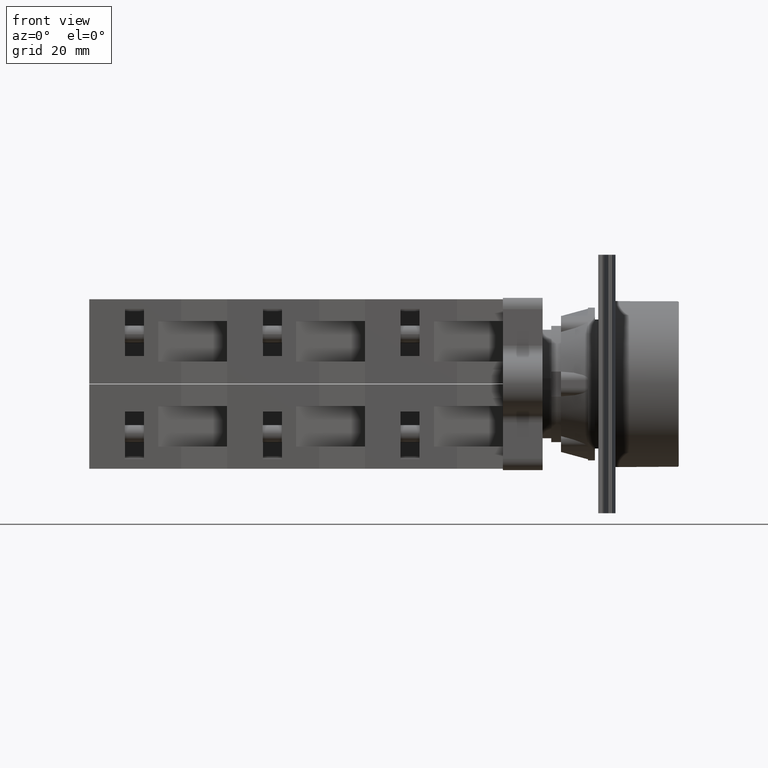
[diagram: clean part render]
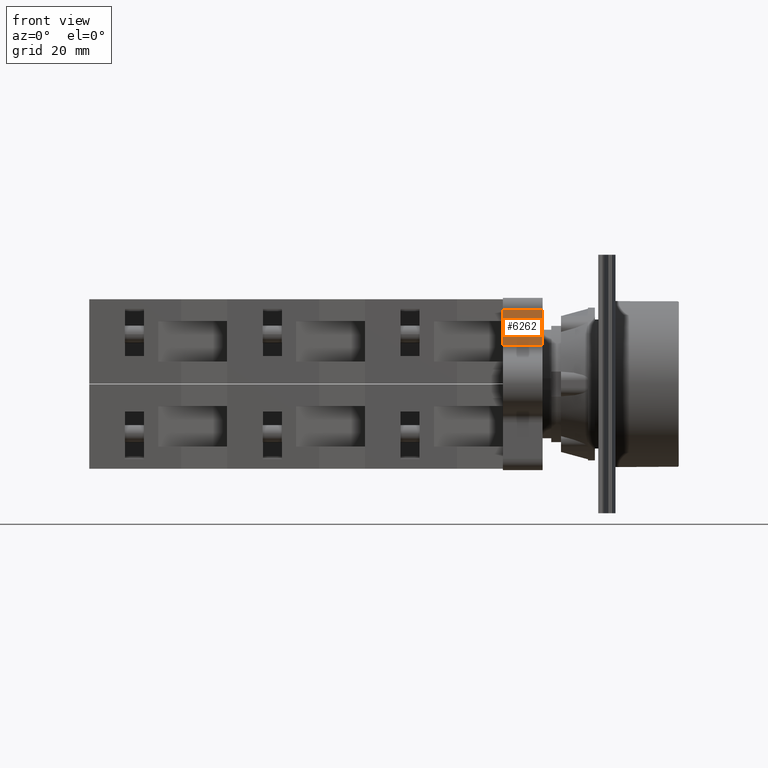
[diagram: same view with one face highlighted and labeled with its STEP entity id]
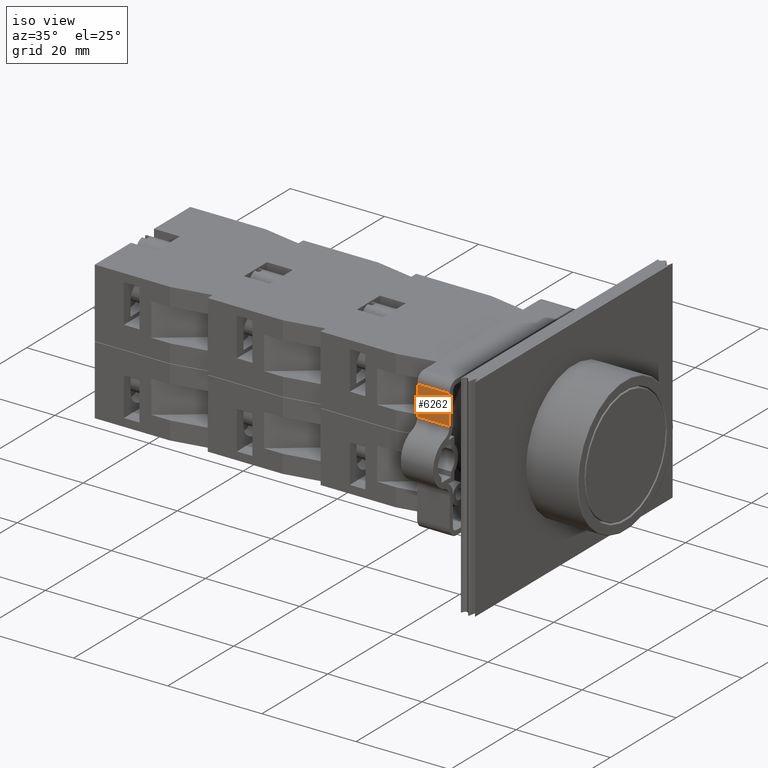
[diagram: same view with one face highlighted and labeled with its STEP entity id]
A machine part, front view. The second image highlights one B-rep face of the part: STEP entity #6262.
A second angle (iso view) of the same face is appended — the face is thin or edge-on in the first view.
In plain terms, the highlighted planar face has unit normal (-0, -1, -0).
Its self-contained STEP definition (entity closure, byte-faithful):
#3160=CARTESIAN_POINT('',(-24.189626604047163,15.452596766800632,0.0));
#3161=VERTEX_POINT('',#3160);
#3169=CARTESIAN_POINT('',(-17.897830536546543,15.452596766800637,0.0));
#3170=VERTEX_POINT('',#3169);
#3171=CARTESIAN_POINT('',(-24.189626604047163,15.452596766800632,0.0));
#3172=DIRECTION('',(1.0,0.0,0.0));
#3173=VECTOR('',#3172,6.291796067500620);
#3174=LINE('',#3171,#3173);
#3175=EDGE_CURVE('',#3161,#3170,#3174,.T.);
#6232=CARTESIAN_POINT('',(-24.189626604047163,15.452596766800632,0.0));
#6233=DIRECTION('',(0.0,1.0,0.0));
#6234=DIRECTION('',(0.0,0.0,1.0));
#6235=AXIS2_PLACEMENT_3D('',#6232,#6233,#6234);
#6236=PLANE('',#6235);
#6237=CARTESIAN_POINT('',(-24.189626604047163,15.452596766800632,6.900000000000000));
#6238=VERTEX_POINT('',#6237);
#6239=CARTESIAN_POINT('',(-17.897830536546543,15.452596766800637,6.900000000000000));
#6240=VERTEX_POINT('',#6239);
#6241=CARTESIAN_POINT('',(-24.189626604047163,15.452596766800632,6.900000000000000));
#6242=DIRECTION('',(1.0,0.0,0.0));
#6243=VECTOR('',#6242,6.291796067500620);
#6244=LINE('',#6241,#6243);
#6245=EDGE_CURVE('',#6238,#6240,#6244,.T.);
#6246=ORIENTED_EDGE('',*,*,#6245,.T.);
#6247=CARTESIAN_POINT('',(-17.897830536546543,15.452596766800637,0.0));
#6248=DIRECTION('',(0.0,0.0,1.0));
#6249=VECTOR('',#6248,6.900000000000000);
#6250=LINE('',#6247,#6249);
#6251=EDGE_CURVE('',#3170,#6240,#6250,.T.);
#6252=ORIENTED_EDGE('',*,*,#6251,.F.);
#6253=ORIENTED_EDGE('',*,*,#3175,.F.);
#6254=CARTESIAN_POINT('',(-24.189626604047163,15.452596766800632,0.0));
#6255=DIRECTION('',(0.0,0.0,1.0));
#6256=VECTOR('',#6255,6.900000000000000);
#6257=LINE('',#6254,#6256);
#6258=EDGE_CURVE('',#3161,#6238,#6257,.T.);
#6259=ORIENTED_EDGE('',*,*,#6258,.T.);
#6260=EDGE_LOOP('',(#6246,#6252,#6253,#6259));
#6261=FACE_OUTER_BOUND('',#6260,.T.);
#6262=ADVANCED_FACE('',(#6261),#6236,.T.);